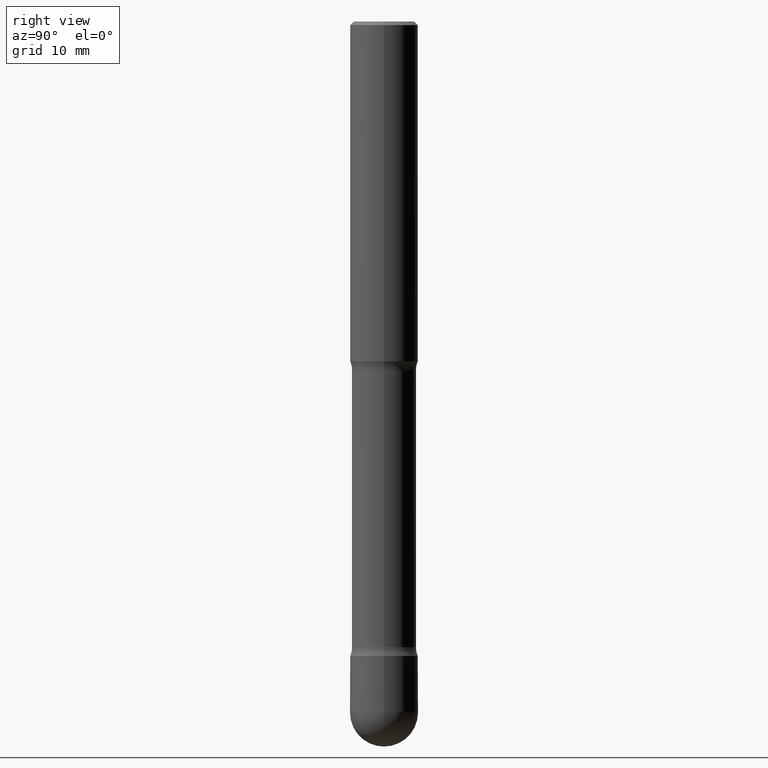
[diagram: clean part render]
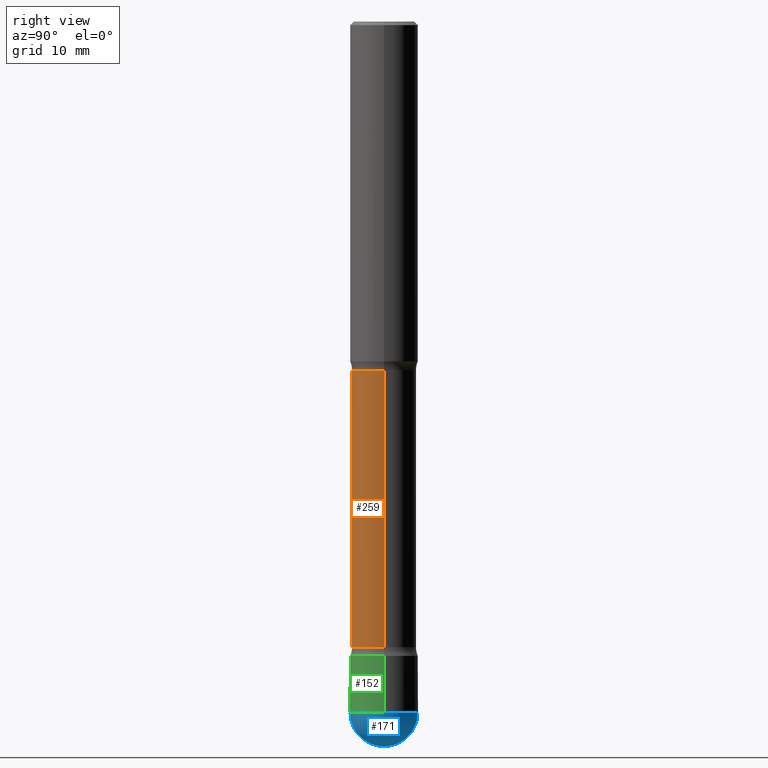
[diagram: same view with three faces highlighted in distinct colors, each labeled with its STEP entity id]
A machine part, right view with three faces highlighted in distinct colors.
Their STEP definitions:

[orange] entity #259 — the highlighted cylindrical surface (edge-blend (fillet) strip) has radius 4.5085 mm, axis along (0, -0, -1).
#35 = FACE_OUTER_BOUND ( 'NONE', #134, .T. ) ;
#42 = CARTESIAN_POINT ( 'NONE',  ( -0.1774999999999996025, -5.478098589573891921E-15, -1.923989794855663904 ) ) ;
#43 = DIRECTION ( 'NONE',  ( -1.000000000000000000, 6.982962677686269077E-15, 0.000000000000000000 ) ) ;
#67 = AXIS2_PLACEMENT_3D ( 'NONE', #533, #145, #43 ) ;
#71 = DIRECTION ( 'NONE',  ( -1.000000000000000000, 6.982962677686269077E-15, 0.000000000000000000 ) ) ;
#83 = CARTESIAN_POINT ( 'NONE',  ( 8.439337806507044109E-29, -1.204913773141870678E-14, -3.451010205144336762 ) ) ;
#96 = AXIS2_PLACEMENT_3D ( 'NONE', #250, #245, #166 ) ;
#124 = VECTOR ( 'NONE', #140, 39.37007874015748143 ) ;
#129 = VERTEX_POINT ( 'NONE', #279 ) ;
#134 = EDGE_LOOP ( 'NONE', ( #141, #418, #486, #313 ) ) ;
#140 = DIRECTION ( 'NONE',  ( 2.445468806185136877E-29, -3.491481338843145188E-15, -1.000000000000000000 ) ) ;
#141 = ORIENTED_EDGE ( 'NONE', *, *, #328, .F. ) ;
#145 = DIRECTION ( 'NONE',  ( 2.445468806185136597E-29, -3.491481338843145583E-15, -1.000000000000000000 ) ) ;
#153 = CARTESIAN_POINT ( 'NONE',  ( -0.1774999999999998246, -1.098070881066169763E-14, -3.500000000000000000 ) ) ;
#166 = DIRECTION ( 'NONE',  ( -1.000000000000000000, 6.982962677686265922E-15, 0.000000000000000000 ) ) ;
#212 = CYLINDRICAL_SURFACE ( 'NONE', #96, 0.1774999999999998246 ) ;
#218 = EDGE_CURVE ( 'NONE', #440, #129, #222, .T. ) ;
#222 = CIRCLE ( 'NONE', #447, 0.1775000000000000189 ) ;
#229 = CARTESIAN_POINT ( 'NONE',  ( 0.1774999999999998246, -1.343792308055545500E-14, -3.500000000000000000 ) ) ;
#234 = VERTEX_POINT ( 'NONE', #42 ) ;
#245 = DIRECTION ( 'NONE',  ( 2.445468806185136597E-29, -3.491481338843145583E-15, -1.000000000000000000 ) ) ;
#250 = CARTESIAN_POINT ( 'NONE',  ( 8.559140821647976968E-29, -1.222018468595100934E-14, -3.500000000000000000 ) ) ;
#259 = ADVANCED_FACE ( 'NONE', ( #35 ), #212, .T. ) ;
#278 = DIRECTION ( 'NONE',  ( 2.445468806185136877E-29, -3.491481338843145188E-15, -1.000000000000000000 ) ) ;
#279 = CARTESIAN_POINT ( 'NONE',  ( -0.1775000000000000189, -1.080966185612939350E-14, -3.451010205144336762 ) ) ;
#285 = LINE ( 'NONE', #153, #551 ) ;
#313 = ORIENTED_EDGE ( 'NONE', *, *, #218, .F. ) ;
#314 = CIRCLE ( 'NONE', #67, 0.1774999999999996025 ) ;
#328 = EDGE_CURVE ( 'NONE', #528, #440, #527, .T. ) ;
#332 = CARTESIAN_POINT ( 'NONE',  ( 0.1774999999999996025, -7.884091872190356263E-15, -1.923989794855663904 ) ) ;
#348 = DIRECTION ( 'NONE',  ( 2.445468806185136597E-29, -3.491481338843145583E-15, -1.000000000000000000 ) ) ;
#372 = EDGE_CURVE ( 'NONE', #528, #234, #314, .T. ) ;
#418 = ORIENTED_EDGE ( 'NONE', *, *, #372, .T. ) ;
#440 = VERTEX_POINT ( 'NONE', #441 ) ;
#441 = CARTESIAN_POINT ( 'NONE',  ( 0.1775000000000000189, -1.060109449274539731E-14, -3.451010205144336762 ) ) ;
#447 = AXIS2_PLACEMENT_3D ( 'NONE', #83, #348, #71 ) ;
#486 = ORIENTED_EDGE ( 'NONE', *, *, #554, .T. ) ;
#527 = LINE ( 'NONE', #229, #124 ) ;
#528 = VERTEX_POINT ( 'NONE', #332 ) ;
#533 = CARTESIAN_POINT ( 'NONE',  ( 4.705057026738065659E-29, -6.717574464863202053E-15, -1.923989794855663904 ) ) ;
#551 = VECTOR ( 'NONE', #278, 39.37007874015748143 ) ;
#554 = EDGE_CURVE ( 'NONE', #234, #129, #285, .T. ) ;

[blue] entity #171 — the highlighted spherical surface has radius 4.7625 mm.
#15 = DIRECTION ( 'NONE',  ( 1.000000000000000000, -6.982962677686265922E-15, 4.883557194083112340E-29 ) ) ;
#24 = CARTESIAN_POINT ( 'NONE',  ( 9.323349823580833275E-29, -1.331127260433949088E-14, -3.812500000000000000 ) ) ;
#54 = VERTEX_POINT ( 'NONE', #540 ) ;
#61 = CARTESIAN_POINT ( 'NONE',  ( 9.859374669697428406E-29, -1.385494173919985124E-14, -4.000000000000000000 ) ) ;
#70 = EDGE_CURVE ( 'NONE', #123, #349, #113, .T. ) ;
#73 = AXIS2_PLACEMENT_3D ( 'NONE', #203, #546, #502 ) ;
#77 = AXIS2_PLACEMENT_3D ( 'NONE', #466, #291, #128 ) ;
#107 = DIRECTION ( 'NONE',  ( -2.445468806185136597E-29, 3.491481338843145583E-15, 1.000000000000000000 ) ) ;
#109 = EDGE_CURVE ( 'NONE', #54, #185, #114, .T. ) ;
#113 = CIRCLE ( 'NONE', #73, 0.1874999999999998335 ) ;
#114 = CIRCLE ( 'NONE', #523, 0.1874999999999996669 ) ;
#118 = FACE_OUTER_BOUND ( 'NONE', #453, .T. ) ;
#119 = ORIENTED_EDGE ( 'NONE', *, *, #70, .F. ) ;
#123 = VERTEX_POINT ( 'NONE', #61 ) ;
#128 = DIRECTION ( 'NONE',  ( 6.982962677686265922E-15, 1.000000000000000000, -2.913971193241883133E-15 ) ) ;
#150 = DIRECTION ( 'NONE',  ( 1.000000000000000000, -6.982962677686265133E-15, 0.000000000000000000 ) ) ;
#171 = ADVANCED_FACE ( 'NONE', ( #118 ), #436, .T. ) ;
#185 = VERTEX_POINT ( 'NONE', #293 ) ;
#193 = CARTESIAN_POINT ( 'NONE',  ( 9.323349823580833275E-29, -1.331127260433949088E-14, -3.812500000000000000 ) ) ;
#203 = CARTESIAN_POINT ( 'NONE',  ( 9.392832084576658456E-29, -1.321177005190876857E-14, -3.812500000000000000 ) ) ;
#204 = DIRECTION ( 'NONE',  ( -2.445468806185136597E-29, 3.491481338843145583E-15, 1.000000000000000000 ) ) ;
#220 = ORIENTED_EDGE ( 'NONE', *, *, #109, .F. ) ;
#221 = ORIENTED_EDGE ( 'NONE', *, *, #442, .T. ) ;
#261 = AXIS2_PLACEMENT_3D ( 'NONE', #193, #107, #150 ) ;
#291 = DIRECTION ( 'NONE',  ( -1.000000000000000000, 6.982962677686265922E-15, -4.883557194083112901E-29 ) ) ;
#293 = CARTESIAN_POINT ( 'NONE',  ( 1.309305502066266713E-15, 0.1874999999999864830, -3.812500000000000444 ) ) ;
#307 = CARTESIAN_POINT ( 'NONE',  ( 9.392832084576658456E-29, -1.321177005190876857E-14, -3.812500000000000000 ) ) ;
#308 = ORIENTED_EDGE ( 'NONE', *, *, #526, .F. ) ;
#327 = CIRCLE ( 'NONE', #472, 0.1874999999999998335 ) ;
#349 = VERTEX_POINT ( 'NONE', #444 ) ;
#384 = DIRECTION ( 'NONE',  ( 1.000000000000000000, -6.982962677686265133E-15, 0.000000000000000000 ) ) ;
#397 = CIRCLE ( 'NONE', #261, 0.1874999999999996669 ) ;
#436 = SPHERICAL_SURFACE ( 'NONE', #77, 0.1874999999999998335 ) ;
#442 = EDGE_CURVE ( 'NONE', #123, #185, #327, .T. ) ;
#444 = CARTESIAN_POINT ( 'NONE',  ( -1.332267629550092396E-15, -0.1875000000000130174, -3.812499999999999112 ) ) ;
#453 = EDGE_LOOP ( 'NONE', ( #119, #221, #220, #308 ) ) ;
#466 = CARTESIAN_POINT ( 'NONE',  ( 9.392832084576658456E-29, -1.321177005190876857E-14, -3.812500000000000000 ) ) ;
#472 = AXIS2_PLACEMENT_3D ( 'NONE', #307, #15, #536 ) ;
#502 = DIRECTION ( 'NONE',  ( -7.105427357601001070E-15, -1.000000000000000000, 0.000000000000000000 ) ) ;
#523 = AXIS2_PLACEMENT_3D ( 'NONE', #24, #204, #384 ) ;
#526 = EDGE_CURVE ( 'NONE', #349, #54, #397, .T. ) ;
#536 = DIRECTION ( 'NONE',  ( 6.982962677686266711E-15, 1.000000000000000000, 0.000000000000000000 ) ) ;
#540 = CARTESIAN_POINT ( 'NONE',  ( 0.1874999999999996669, -1.407503414721142196E-14, -3.812500000000000000 ) ) ;
#546 = DIRECTION ( 'NONE',  ( -1.000000000000000000, 7.105427357601001070E-15, -4.926315508542082329E-29 ) ) ;

[green] entity #152 — the highlighted cylindrical surface (edge-blend (fillet) strip) has radius 4.7625 mm, axis along (-0, 0, 1).
#28 = ORIENTED_EDGE ( 'NONE', *, *, #231, .F. ) ;
#32 = DIRECTION ( 'NONE',  ( -2.445468806185136597E-29, 3.491481338843145583E-15, 1.000000000000000000 ) ) ;
#54 = VERTEX_POINT ( 'NONE', #540 ) ;
#76 = EDGE_LOOP ( 'NONE', ( #28, #375, #467, #316, #369 ) ) ;
#82 = FACE_OUTER_BOUND ( 'NONE', #76, .T. ) ;
#91 = VERTEX_POINT ( 'NONE', #323 ) ;
#107 = DIRECTION ( 'NONE',  ( -2.445468806185136597E-29, 3.491481338843145583E-15, 1.000000000000000000 ) ) ;
#127 = VECTOR ( 'NONE', #351, 39.37007874015748143 ) ;
#150 = DIRECTION ( 'NONE',  ( 1.000000000000000000, -6.982962677686265133E-15, 0.000000000000000000 ) ) ;
#152 = ADVANCED_FACE ( 'NONE', ( #82 ), #172, .T. ) ;
#154 = CIRCLE ( 'NONE', #249, 0.1874999999999996392 ) ;
#172 = CYLINDRICAL_SURFACE ( 'NONE', #356, 0.1874999999999996392 ) ;
#193 = CARTESIAN_POINT ( 'NONE',  ( 9.323349823580833275E-29, -1.331127260433949088E-14, -3.812500000000000000 ) ) ;
#209 = CARTESIAN_POINT ( 'NONE',  ( -0.1874999999999996392, 1.332267629550185285E-15, -9.223003294227931175E-30 ) ) ;
#231 = EDGE_CURVE ( 'NONE', #531, #91, #260, .T. ) ;
#249 = AXIS2_PLACEMENT_3D ( 'NONE', #430, #32, #390 ) ;
#257 = CARTESIAN_POINT ( 'NONE',  ( 0.000000000000000000, 0.000000000000000000, 0.000000000000000000 ) ) ;
#260 = LINE ( 'NONE', #209, #271 ) ;
#261 = AXIS2_PLACEMENT_3D ( 'NONE', #193, #107, #150 ) ;
#265 = LINE ( 'NONE', #452, #127 ) ;
#267 = EDGE_CURVE ( 'NONE', #91, #427, #154, .T. ) ;
#271 = VECTOR ( 'NONE', #438, 39.37007874015748143 ) ;
#316 = ORIENTED_EDGE ( 'NONE', *, *, #413, .T. ) ;
#323 = CARTESIAN_POINT ( 'NONE',  ( -0.1874999999999996392, -1.143346101559506542E-14, -3.500000000000000000 ) ) ;
#338 = EDGE_CURVE ( 'NONE', #531, #349, #513, .T. ) ;
#349 = VERTEX_POINT ( 'NONE', #444 ) ;
#351 = DIRECTION ( 'NONE',  ( -2.445468806185136877E-29, 3.491481338843145188E-15, 1.000000000000000000 ) ) ;
#356 = AXIS2_PLACEMENT_3D ( 'NONE', #257, #512, #561 ) ;
#369 = ORIENTED_EDGE ( 'NONE', *, *, #267, .F. ) ;
#375 = ORIENTED_EDGE ( 'NONE', *, *, #338, .T. ) ;
#390 = DIRECTION ( 'NONE',  ( 1.000000000000000000, -6.982962677686266711E-15, 0.000000000000000000 ) ) ;
#397 = CIRCLE ( 'NONE', #261, 0.1874999999999996669 ) ;
#408 = DIRECTION ( 'NONE',  ( 1.000000000000000000, -6.982962677686265133E-15, 0.000000000000000000 ) ) ;
#413 = EDGE_CURVE ( 'NONE', #54, #427, #265, .T. ) ;
#427 = VERTEX_POINT ( 'NONE', #481 ) ;
#430 = CARTESIAN_POINT ( 'NONE',  ( 8.559140821647976968E-29, -1.222018468595100934E-14, -3.500000000000000000 ) ) ;
#431 = AXIS2_PLACEMENT_3D ( 'NONE', #483, #529, #408 ) ;
#438 = DIRECTION ( 'NONE',  ( -2.445468806185136877E-29, 3.491481338843145188E-15, 1.000000000000000000 ) ) ;
#444 = CARTESIAN_POINT ( 'NONE',  ( -1.332267629550092396E-15, -0.1875000000000130174, -3.812499999999999112 ) ) ;
#452 = CARTESIAN_POINT ( 'NONE',  ( 0.1874999999999996392, -1.309305502066172642E-15, 9.142831454617361395E-30 ) ) ;
#467 = ORIENTED_EDGE ( 'NONE', *, *, #526, .T. ) ;
#481 = CARTESIAN_POINT ( 'NONE',  ( 0.1874999999999996392, -1.352949018801718119E-14, -3.500000000000000000 ) ) ;
#483 = CARTESIAN_POINT ( 'NONE',  ( 9.323349823580833275E-29, -1.331127260433949088E-14, -3.812500000000000000 ) ) ;
#497 = CARTESIAN_POINT ( 'NONE',  ( -0.1874999999999996669, -1.143346101559506542E-14, -3.812500000000000000 ) ) ;
#512 = DIRECTION ( 'NONE',  ( -2.445468806185136597E-29, 3.491481338843145583E-15, 1.000000000000000000 ) ) ;
#513 = CIRCLE ( 'NONE', #431, 0.1874999999999996669 ) ;
#526 = EDGE_CURVE ( 'NONE', #349, #54, #397, .T. ) ;
#529 = DIRECTION ( 'NONE',  ( -2.445468806185136597E-29, 3.491481338843145583E-15, 1.000000000000000000 ) ) ;
#531 = VERTEX_POINT ( 'NONE', #497 ) ;
#540 = CARTESIAN_POINT ( 'NONE',  ( 0.1874999999999996669, -1.407503414721142196E-14, -3.812500000000000000 ) ) ;
#561 = DIRECTION ( 'NONE',  ( 1.000000000000000000, -6.982962677686267499E-15, 4.876176775795935232E-29 ) ) ;